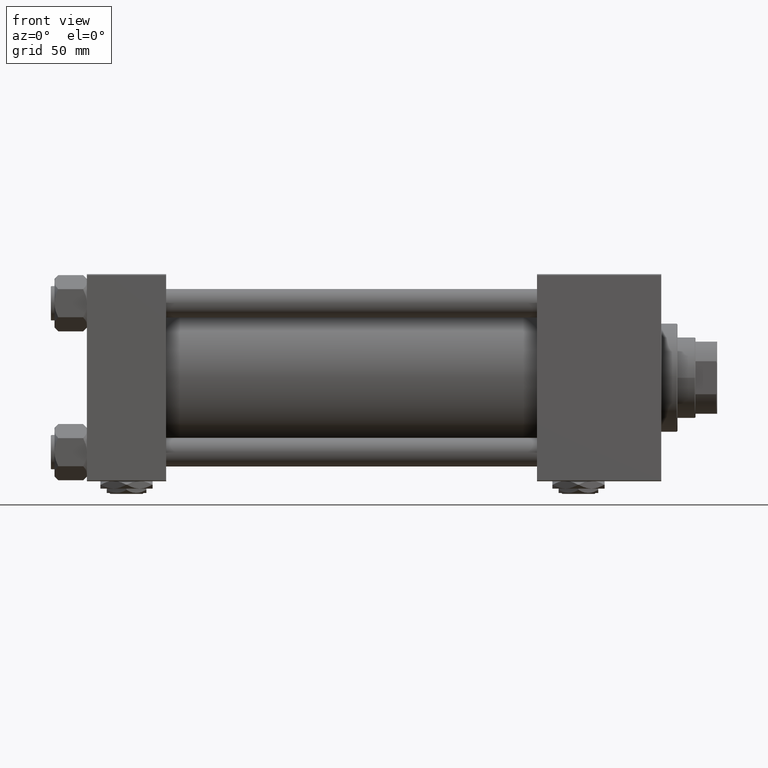
[diagram: clean part render]
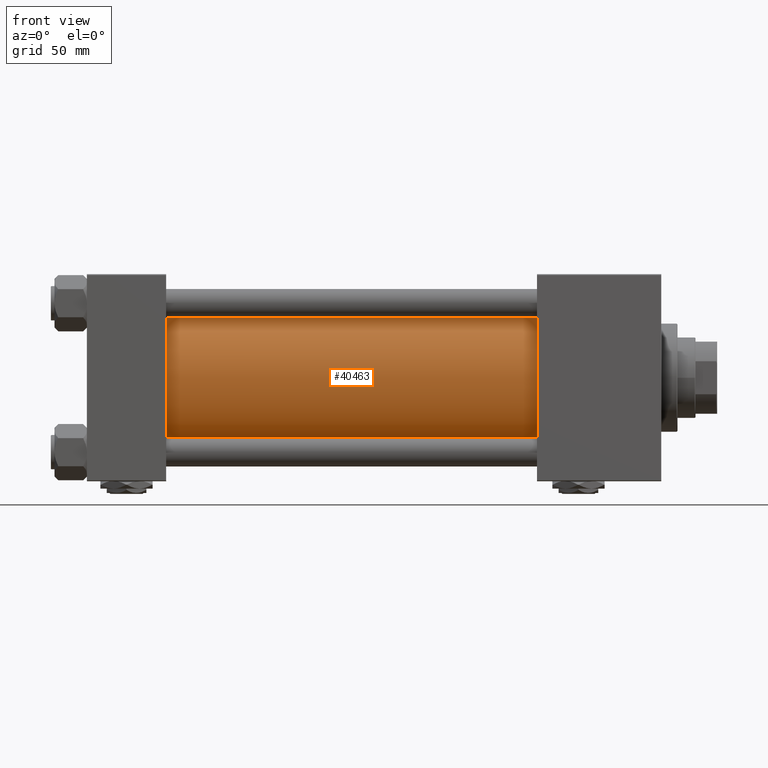
[diagram: same view with one face highlighted and labeled with its STEP entity id]
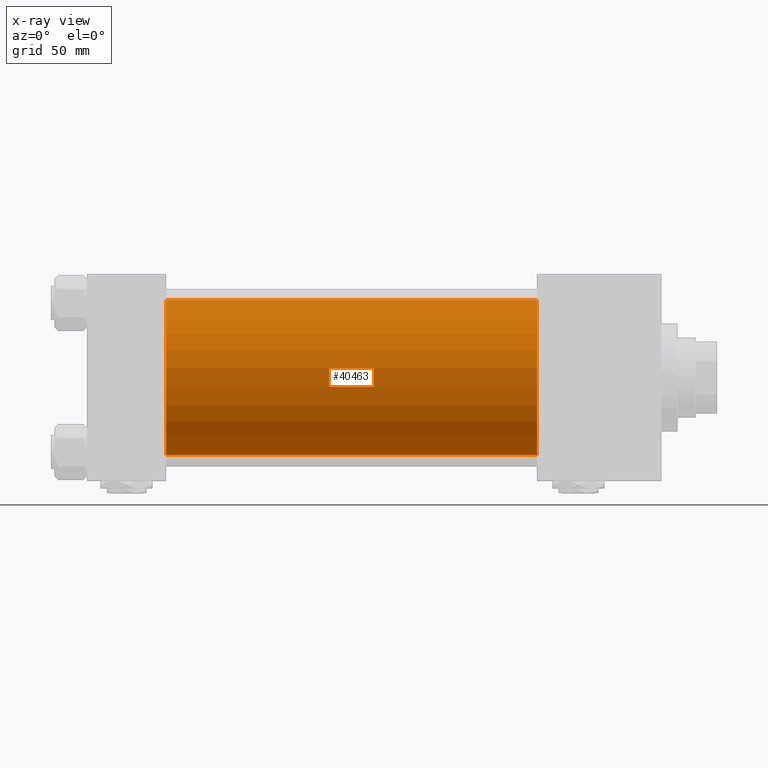
[diagram: x-ray of the same camera — body ghosted, the highlighted face saturated]
A machine part, front view. The second image highlights one B-rep face of the part: STEP entity #40463.
The next image is the same camera in x-ray: the body ghosted, the highlighted face saturated — about 1% of this face is hidden behind the body in this view.
In plain terms, the highlighted cylindrical surface (partial cylindrical patch) has radius 43 mm, axis along (-1, -0, -0).
Its self-contained STEP definition (entity closure, byte-faithful):
#236 = CARTESIAN_POINT ( 'NONE',  ( 250.0000000000000000, -2.602085213965210642E-15, 0.000000000000000000 ) ) ;
#980 = CARTESIAN_POINT ( 'NONE',  ( 43.99999999999998579, 2.663896022368408223E-15, -43.00000000000000000 ) ) ;
#2928 = EDGE_CURVE ( 'NONE', #24523, #46872, #18924, .T. ) ;
#4397 = DIRECTION ( 'NONE',  ( 0.000000000000000000, 0.000000000000000000, 1.000000000000000000 ) ) ;
#9326 = FACE_OUTER_BOUND ( 'NONE', #18937, .T. ) ;
#10479 = AXIS2_PLACEMENT_3D ( 'NONE', #236, #37416, #41150 ) ;
#10483 = AXIS2_PLACEMENT_3D ( 'NONE', #44533, #36512, #4397 ) ;
#11198 = VECTOR ( 'NONE', #11936, 1000.000000000000000 ) ;
#11402 = EDGE_CURVE ( 'NONE', #36774, #13076, #43949, .T. ) ;
#11936 = DIRECTION ( 'NONE',  ( -1.000000000000000000, -0.000000000000000000, -0.000000000000000000 ) ) ;
#13076 = VERTEX_POINT ( 'NONE', #44792 ) ;
#15718 = ORIENTED_EDGE ( 'NONE', *, *, #11402, .F. ) ;
#18924 = CIRCLE ( 'NONE', #10483, 43.00000000000000000 ) ;
#18937 = EDGE_LOOP ( 'NONE', ( #29436, #15718, #34073, #49130 ) ) ;
#20481 = CARTESIAN_POINT ( 'NONE',  ( 250.0000000000000000, -2.602085213965210642E-15, 43.00000000000000000 ) ) ;
#20879 = AXIS2_PLACEMENT_3D ( 'NONE', #28276, #27485, #47571 ) ;
#21624 = CYLINDRICAL_SURFACE ( 'NONE', #10479, 43.00000000000000000 ) ;
#24350 = LINE ( 'NONE', #40415, #26548 ) ;
#24523 = VERTEX_POINT ( 'NONE', #36190 ) ;
#24753 = LINE ( 'NONE', #20481, #11198 ) ;
#26548 = VECTOR ( 'NONE', #32914, 1000.000000000000000 ) ;
#27485 = DIRECTION ( 'NONE',  ( 1.000000000000000000, 0.000000000000000000, 0.000000000000000000 ) ) ;
#28276 = CARTESIAN_POINT ( 'NONE',  ( 250.0000000000000000, -2.602085213965210642E-15, 0.000000000000000000 ) ) ;
#29436 = ORIENTED_EDGE ( 'NONE', *, *, #36628, .F. ) ;
#31280 = CARTESIAN_POINT ( 'NONE',  ( 250.0000000000000000, -2.602085213965210642E-15, 43.00000000000000000 ) ) ;
#32660 = EDGE_CURVE ( 'NONE', #36774, #24523, #24753, .T. ) ;
#32914 = DIRECTION ( 'NONE',  ( -1.000000000000000000, -0.000000000000000000, -0.000000000000000000 ) ) ;
#34073 = ORIENTED_EDGE ( 'NONE', *, *, #32660, .T. ) ;
#36190 = CARTESIAN_POINT ( 'NONE',  ( 43.99999999999998579, -2.602085213965210642E-15, 43.00000000000000000 ) ) ;
#36512 = DIRECTION ( 'NONE',  ( 1.000000000000000000, -0.000000000000000000, 0.000000000000000000 ) ) ;
#36628 = EDGE_CURVE ( 'NONE', #13076, #46872, #24350, .T. ) ;
#36774 = VERTEX_POINT ( 'NONE', #31280 ) ;
#37416 = DIRECTION ( 'NONE',  ( -1.000000000000000000, -0.000000000000000000, -0.000000000000000000 ) ) ;
#40415 = CARTESIAN_POINT ( 'NONE',  ( 250.0000000000000000, 2.663896022368408223E-15, -43.00000000000000000 ) ) ;
#40463 = ADVANCED_FACE ( 'NONE', ( #9326 ), #21624, .T. ) ;
#41150 = DIRECTION ( 'NONE',  ( 0.000000000000000000, 0.000000000000000000, 1.000000000000000000 ) ) ;
#43949 = CIRCLE ( 'NONE', #20879, 43.00000000000000000 ) ;
#44533 = CARTESIAN_POINT ( 'NONE',  ( 43.99999999999998579, -2.602085213965210642E-15, 0.000000000000000000 ) ) ;
#44792 = CARTESIAN_POINT ( 'NONE',  ( 250.0000000000000000, 2.663896022368408223E-15, -43.00000000000000000 ) ) ;
#46872 = VERTEX_POINT ( 'NONE', #980 ) ;
#47571 = DIRECTION ( 'NONE',  ( 0.000000000000000000, 0.000000000000000000, -1.000000000000000000 ) ) ;
#49130 = ORIENTED_EDGE ( 'NONE', *, *, #2928, .T. ) ;